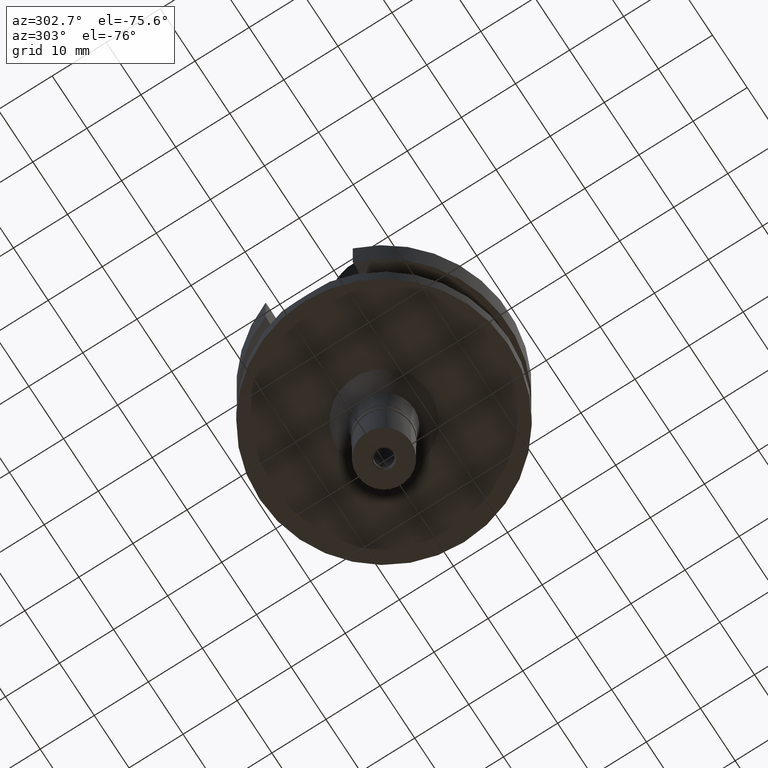
[diagram: clean part render]
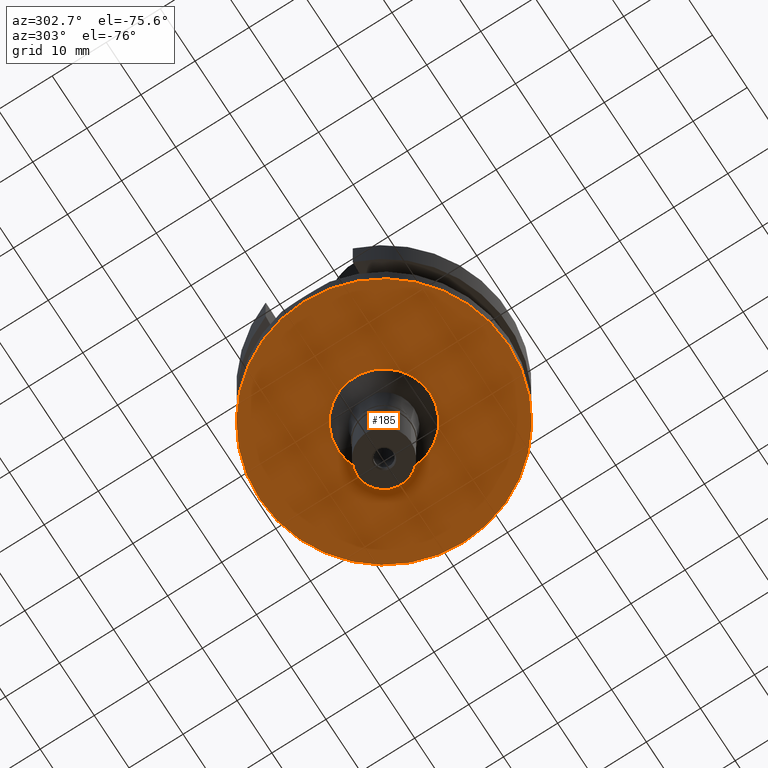
[diagram: same view with one face highlighted and labeled with its STEP entity id]
A machine part, auxiliary view. The second image highlights one B-rep face of the part: STEP entity #185.
In plain terms, the highlighted planar face has unit normal (0, 0, -1).
Its self-contained STEP definition (entity closure, byte-faithful):
#142 = ORIENTED_EDGE ( 'NONE', *, *, #2365, .F. ) ;
#172 = VERTEX_POINT ( 'NONE', #1088 ) ;
#185 = ADVANCED_FACE ( 'NONE', ( #601, #1309 ), #1735, .T. ) ;
#198 = CIRCLE ( 'NONE', #956, 23.00000000000000000 ) ;
#463 = ORIENTED_EDGE ( 'NONE', *, *, #1576, .F. ) ;
#492 = VERTEX_POINT ( 'NONE', #2917 ) ;
#504 = VERTEX_POINT ( 'NONE', #1691 ) ;
#601 = FACE_OUTER_BOUND ( 'NONE', #1221, .T. ) ;
#610 = AXIS2_PLACEMENT_3D ( 'NONE', #2738, #805, #2752 ) ;
#638 = CARTESIAN_POINT ( 'NONE',  ( 0.0000000000000000000, 0.0000000000000000000, -22.00000000000000000 ) ) ;
#648 = DIRECTION ( 'NONE',  ( 0.0000000000000000000, -1.000000000000000000, 0.0000000000000000000 ) ) ;
#715 = EDGE_CURVE ( 'NONE', #504, #492, #2685, .T. ) ;
#788 = VERTEX_POINT ( 'NONE', #1874 ) ;
#804 = ORIENTED_EDGE ( 'NONE', *, *, #715, .F. ) ;
#805 = DIRECTION ( 'NONE',  ( 0.0000000000000000000, 0.0000000000000000000, -1.000000000000000000 ) ) ;
#956 = AXIS2_PLACEMENT_3D ( 'NONE', #1787, #2336, #2312 ) ;
#983 = DIRECTION ( 'NONE',  ( 0.0000000000000000000, 1.000000000000000000, 0.0000000000000000000 ) ) ;
#1016 = DIRECTION ( 'NONE',  ( 0.0000000000000000000, 1.000000000000000000, 0.0000000000000000000 ) ) ;
#1088 = CARTESIAN_POINT ( 'NONE',  ( 0.0000000000000000000, -23.00000000000000000, -22.00000000000000000 ) ) ;
#1189 = DIRECTION ( 'NONE',  ( 0.0000000000000000000, 0.0000000000000000000, -1.000000000000000000 ) ) ;
#1202 = EDGE_CURVE ( 'NONE', #172, #788, #198, .T. ) ;
#1221 = EDGE_LOOP ( 'NONE', ( #142, #1543 ) ) ;
#1309 = FACE_BOUND ( 'NONE', #2719, .T. ) ;
#1407 = CARTESIAN_POINT ( 'NONE',  ( 0.0000000000000000000, 1.872301258875999904E-14, -22.00000000000000000 ) ) ;
#1543 = ORIENTED_EDGE ( 'NONE', *, *, #1202, .F. ) ;
#1576 = EDGE_CURVE ( 'NONE', #492, #504, #2829, .T. ) ;
#1683 = AXIS2_PLACEMENT_3D ( 'NONE', #2641, #1189, #983 ) ;
#1691 = CARTESIAN_POINT ( 'NONE',  ( 0.0000000000000000000, 8.524931981156001370, -22.00000000000000000 ) ) ;
#1735 = PLANE ( 'NONE',  #610 ) ;
#1772 = AXIS2_PLACEMENT_3D ( 'NONE', #1407, #2291, #1016 ) ;
#1787 = CARTESIAN_POINT ( 'NONE',  ( 0.0000000000000000000, 1.872301258875999904E-14, -22.00000000000000000 ) ) ;
#1874 = CARTESIAN_POINT ( 'NONE',  ( 0.0000000000000000000, 23.00000000000000000, -22.00000000000000000 ) ) ;
#2003 = DIRECTION ( 'NONE',  ( 0.0000000000000000000, 0.0000000000000000000, -1.000000000000000000 ) ) ;
#2144 = AXIS2_PLACEMENT_3D ( 'NONE', #638, #2003, #648 ) ;
#2291 = DIRECTION ( 'NONE',  ( 0.0000000000000000000, 0.0000000000000000000, 1.000000000000000000 ) ) ;
#2312 = DIRECTION ( 'NONE',  ( 0.0000000000000000000, -1.000000000000000000, 0.0000000000000000000 ) ) ;
#2336 = DIRECTION ( 'NONE',  ( 0.0000000000000000000, 0.0000000000000000000, 1.000000000000000000 ) ) ;
#2365 = EDGE_CURVE ( 'NONE', #788, #172, #2618, .T. ) ;
#2618 = CIRCLE ( 'NONE', #1772, 23.00000000000000000 ) ;
#2641 = CARTESIAN_POINT ( 'NONE',  ( 0.0000000000000000000, 0.0000000000000000000, -22.00000000000000000 ) ) ;
#2685 = CIRCLE ( 'NONE', #1683, 8.524931981156001370 ) ;
#2719 = EDGE_LOOP ( 'NONE', ( #804, #463 ) ) ;
#2738 = CARTESIAN_POINT ( 'NONE',  ( 0.0000000000000000000, 0.0000000000000000000, -22.00000000000000000 ) ) ;
#2752 = DIRECTION ( 'NONE',  ( 0.0000000000000000000, -1.000000000000000000, 0.0000000000000000000 ) ) ;
#2829 = CIRCLE ( 'NONE', #2144, 8.524931981156001370 ) ;
#2917 = CARTESIAN_POINT ( 'NONE',  ( 0.0000000000000000000, -8.524931981156001370, -22.00000000000000000 ) ) ;